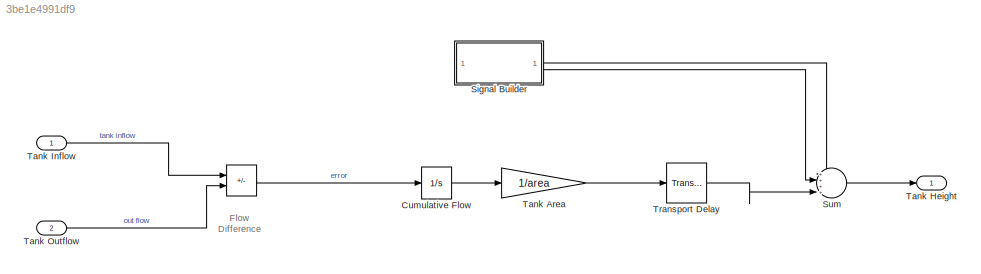
MODEL slx_3be1e4991df9
KIND model
CONFIG AbsTol = auto
CONFIG EnableMultiTasking = off
CONFIG FixedStep = auto
CONFIG MaxStep = auto
CONFIG MinStep = auto
CONFIG RelTol = 1e-3
CONFIG SampleTimeConstraint = Unconstrained
CONFIG SolverName = VariableStepAuto
CONFIG StartTime = 0.0
CONFIG StopTime = 10.0
BLOCK [Sum]  
  IconShape = rectangular
  InputSameDT = on
  Inputs = +-
  OutDataTypeStr = Inherit: Same as first input
  SaturateOnIntegerOverflow = on
BLOCK [Integrator] Cumulative Flow
  InitialCondition = 6
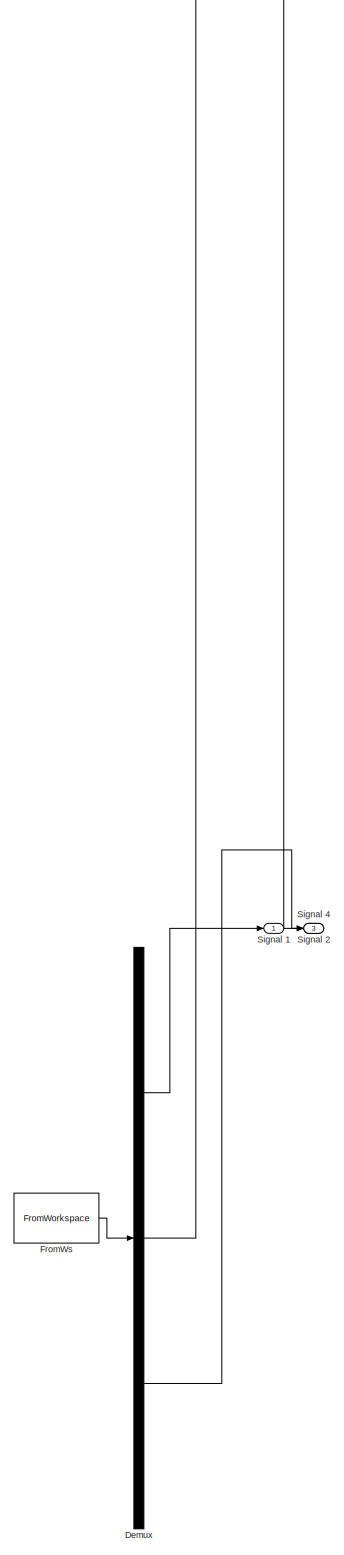
[diagram: Signal Builder - part 1/1, full width, bottom band]
BLOCK [SubSystem] Signal Builder
  ClipboardFcn = sigbuilder_block('clipboard');
  CloseFcn = sigbuilder_block('close');
  ContinueFcn = sigbuilder_block('continue');
  CopyFcn = sigbuilder_block('copy');
  DeleteFcn = sigbuilder_block('delete');
  LoadFcn = sigbuilder_block('load');
  MaskHideContents = on
  ModelCloseFcn = sigbuilder_block('modelClose');
  NameChangeFcn = sigbuilder_block('namechange');
  OpenFcn = sigbuilder_block('open',[301 31 550.5 362.5 ]);
  PauseFcn = sigbuilder_block('pause');
  PreSaveFcn = sigbuilder_block('preSave');
  StartFcn = sigbuilder_block('start');
  StopFcn = sigbuilder_block('stop');
  Tag = STV Subsys
BLOCK [Demux] Signal Builder/Demux
  DisplayOption = none
  Outputs = 3
  Tag = STV Demux
BLOCK [FromWorkspace] Signal Builder/FromWs
  Tag = STV FromWs
  VariableName = tuvar
BLOCK [Outport] Signal Builder/Signal 1
  Tag = STV Outport
BLOCK [Outport] Signal Builder/Signal 2
  Port = 2
  Tag = STV Outport
BLOCK [Outport] Signal Builder/Signal 4
  Port = 3
  Tag = STV Outport
BLOCK [Sum] Sum
  Inputs = ++++|
BLOCK [Gain] Tank Area
  Gain = 1/area
  OutDataTypeStr = Inherit: Same as input
  ParamDataTypeStr = Inherit: Same as input
  SaturateOnIntegerOverflow = on
BLOCK [Outport] Tank Height
  InitialOutput = 0
  VectorParamsAs1DForOutWhenUnconnected = off
BLOCK [Inport] Tank Inflow
  NameLocation = top
BLOCK [Inport] Tank Outflow
  Port = 2
BLOCK [TransportDelay] Transport Delay
  DelayTime = 0.5
  NameLocation = top
ANNOTATION (root): Flow Difference
LINE  :1 -> Cumulative Flow:1
LINE Cumulative Flow:1 -> Tank Area:1
LINE Signal Builder:1 -> Sum:1
LINE Signal Builder:2 -> Sum:2
LINE Sum:1 -> Tank Height:1
LINE Tank Area:1 -> Transport Delay:1
LINE Tank Inflow:1 ->  :1
LINE Tank Outflow:1 ->  :2
LINE Transport Delay:1 -> Sum:4
